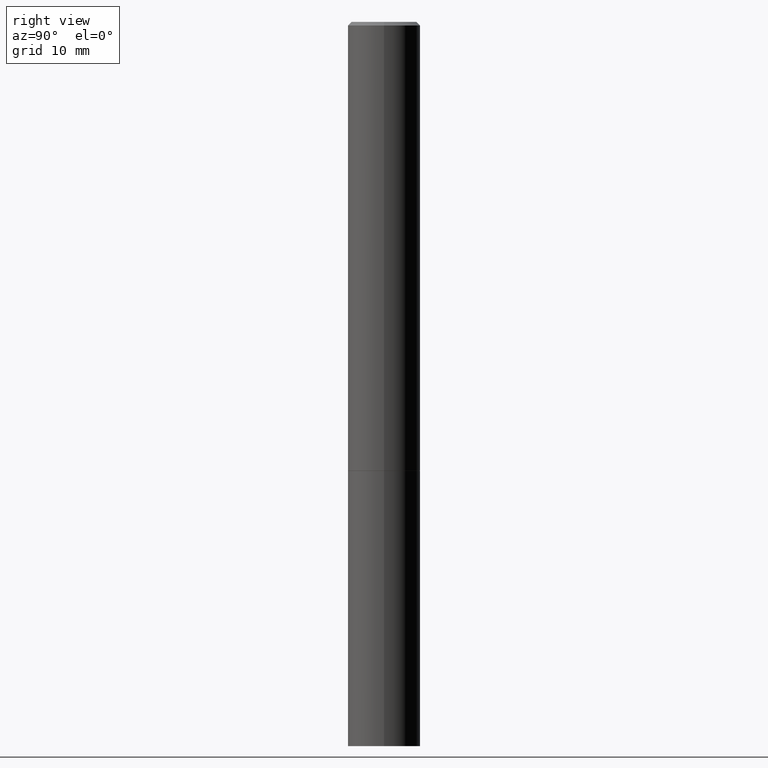
[diagram: clean part render]
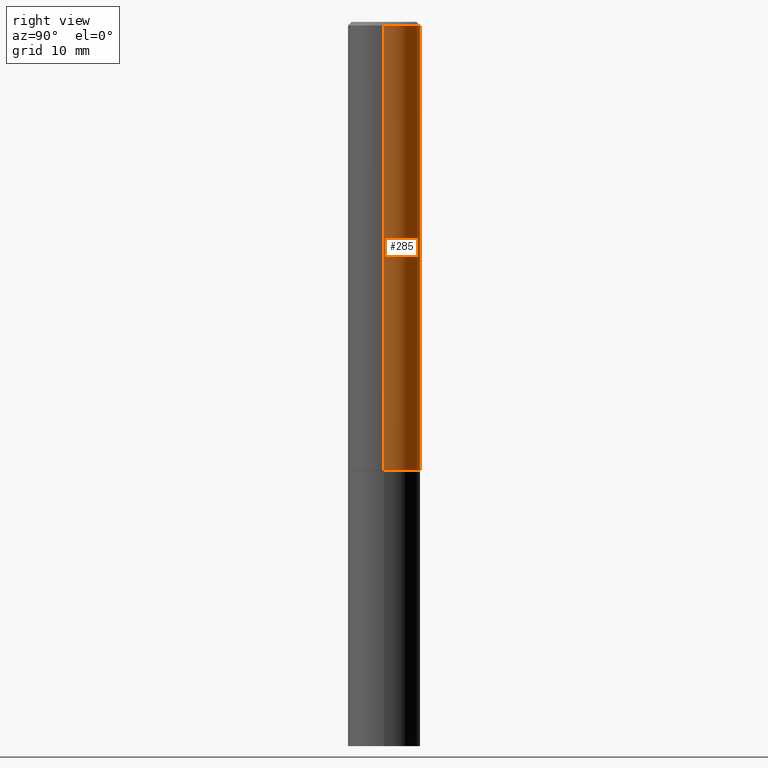
[diagram: same view with one face highlighted and labeled with its STEP entity id]
A machine part, right view. The second image highlights one B-rep face of the part: STEP entity #285.
In plain terms, the highlighted cylindrical surface (edge-blend (fillet) strip) has radius 5 mm, axis along (-0, 0, 1).
Its self-contained STEP definition (entity closure, byte-faithful):
#4 = VERTEX_POINT ( 'NONE', #305 ) ;
#5 = EDGE_CURVE ( 'NONE', #160, #4, #47, .T. ) ;
#14 = CARTESIAN_POINT ( 'NONE',  ( -0.1968500000000000527, -2.895644097366364896E-15, -2.439899999999999736 ) ) ;
#22 = CARTESIAN_POINT ( 'NONE',  ( 5.966699340211114556E-29, -8.518865318643389958E-15, -2.439899999999999736 ) ) ;
#31 = ORIENTED_EDGE ( 'NONE', *, *, #251, .T. ) ;
#41 = AXIS2_PLACEMENT_3D ( 'NONE', #135, #320, #68 ) ;
#47 = LINE ( 'NONE', #246, #281 ) ;
#50 = CARTESIAN_POINT ( 'NONE',  ( 0.000000000000000000, 0.000000000000000000, 0.000000000000000000 ) ) ;
#57 = VERTEX_POINT ( 'NONE', #302 ) ;
#59 = CIRCLE ( 'NONE', #41, 0.1968499999999996364 ) ;
#62 = EDGE_CURVE ( 'NONE', #57, #4, #59, .T. ) ;
#68 = DIRECTION ( 'NONE',  ( 1.000000000000000000, -6.982962677686266711E-15, 0.000000000000000000 ) ) ;
#95 = AXIS2_PLACEMENT_3D ( 'NONE', #50, #222, #104 ) ;
#104 = DIRECTION ( 'NONE',  ( 1.000000000000000000, -6.982962677686266711E-15, 4.876176775795935793E-29 ) ) ;
#113 = VECTOR ( 'NONE', #245, 39.37007874015748143 ) ;
#115 = DIRECTION ( 'NONE',  ( -2.445468806185136597E-29, 3.491481338843145583E-15, 1.000000000000000000 ) ) ;
#135 = CARTESIAN_POINT ( 'NONE',  ( 4.890937612370278413E-31, -6.982962677686297772E-17, -0.02000000000000002123 ) ) ;
#140 = CARTESIAN_POINT ( 'NONE',  ( 0.1968499999999998307, -1.374596203102540425E-15, 9.598753983154291049E-30 ) ) ;
#146 = CYLINDRICAL_SURFACE ( 'NONE', #95, 0.1968499999999998307 ) ;
#160 = VERTEX_POINT ( 'NONE', #14 ) ;
#177 = ORIENTED_EDGE ( 'NONE', *, *, #5, .T. ) ;
#192 = CARTESIAN_POINT ( 'NONE',  ( 0.1968500000000000527, -9.893461521745931567E-15, -2.439899999999999736 ) ) ;
#195 = DIRECTION ( 'NONE',  ( 1.000000000000000000, -6.982962677686266711E-15, 0.000000000000000000 ) ) ;
#222 = DIRECTION ( 'NONE',  ( -2.445468806185136597E-29, 3.491481338843145583E-15, 1.000000000000000000 ) ) ;
#245 = DIRECTION ( 'NONE',  ( -2.445468806185136877E-29, 3.491481338843145188E-15, 1.000000000000000000 ) ) ;
#246 = CARTESIAN_POINT ( 'NONE',  ( -0.1968499999999998307, 1.398703375343756013E-15, -9.682923725166775270E-30 ) ) ;
#251 = EDGE_CURVE ( 'NONE', #287, #160, #342, .T. ) ;
#281 = VECTOR ( 'NONE', #359, 39.37007874015748143 ) ;
#285 = ADVANCED_FACE ( 'NONE', ( #307 ), #146, .T. ) ;
#287 = VERTEX_POINT ( 'NONE', #192 ) ;
#294 = ORIENTED_EDGE ( 'NONE', *, *, #62, .F. ) ;
#302 = CARTESIAN_POINT ( 'NONE',  ( 0.1968499999999996364, -1.420318657638186558E-15, -0.02000000000000002123 ) ) ;
#305 = CARTESIAN_POINT ( 'NONE',  ( -0.1968499999999996364, 1.304766576325675944E-15, -0.02000000000000002123 ) ) ;
#307 = FACE_OUTER_BOUND ( 'NONE', #350, .T. ) ;
#320 = DIRECTION ( 'NONE',  ( -2.445468806185136597E-29, 3.491481338843145583E-15, 1.000000000000000000 ) ) ;
#328 = ORIENTED_EDGE ( 'NONE', *, *, #349, .F. ) ;
#342 = CIRCLE ( 'NONE', #346, 0.1968500000000000527 ) ;
#346 = AXIS2_PLACEMENT_3D ( 'NONE', #22, #115, #195 ) ;
#349 = EDGE_CURVE ( 'NONE', #287, #57, #358, .T. ) ;
#350 = EDGE_LOOP ( 'NONE', ( #31, #177, #294, #328 ) ) ;
#358 = LINE ( 'NONE', #140, #113 ) ;
#359 = DIRECTION ( 'NONE',  ( -2.445468806185136877E-29, 3.491481338843145188E-15, 1.000000000000000000 ) ) ;